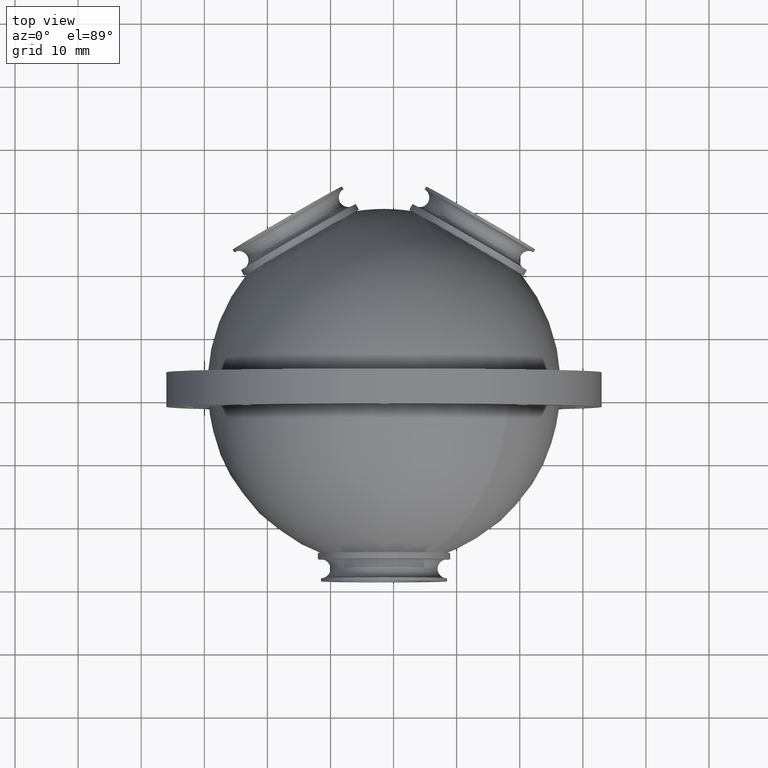
[diagram: clean part render]
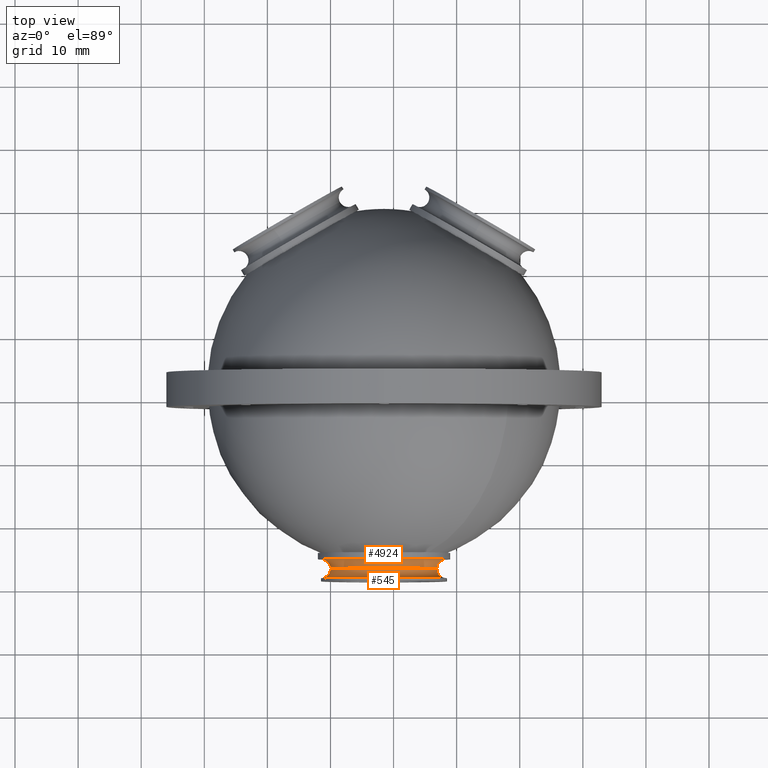
[diagram: same view with one multi-face feature highlighted, each face labeled with its STEP entity id]
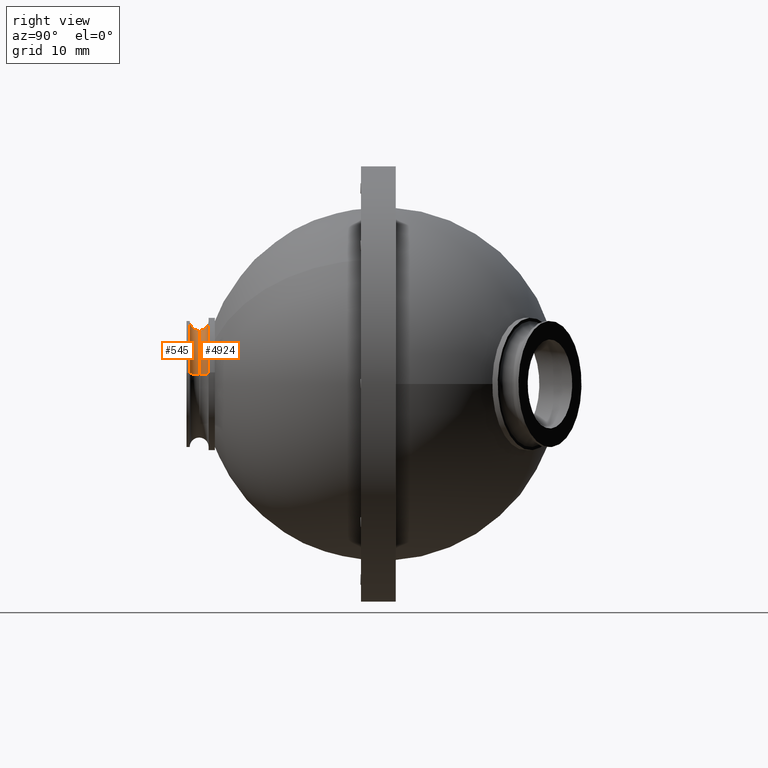
[diagram: same view with one multi-face feature highlighted, each face labeled with its STEP entity id]
A machine part, top view. The highlighted faces form ONE feature: a constant-radius fillet chain: 2 tangent blend faces with common blend radius 1.5 mm. The faces share edges in the B-rep.
A second angle (right view) of the same feature is appended — it is thin or edge-on in the first view.
Their STEP definitions:
[1] entity #4924 (Torus):
#350 = EDGE_CURVE ( 'NONE', #7479, #5092, #699, .T. ) ;
#699 = CIRCLE ( 'NONE', #8032, 1.500000000000002665 ) ;
#725 = EDGE_CURVE ( 'NONE', #1489, #4735, #3458, .T. ) ;
#833 = AXIS2_PLACEMENT_3D ( 'NONE', #3670, #3636, #4892 ) ;
#965 = AXIS2_PLACEMENT_3D ( 'NONE', #5138, #5764, #5726 ) ;
#1250 = AXIS2_PLACEMENT_3D ( 'NONE', #7990, #1936, #6153 ) ;
#1489 = VERTEX_POINT ( 'NONE', #5492 ) ;
#1551 = EDGE_CURVE ( 'NONE', #7479, #1489, #3738, .T. ) ;
#1936 = DIRECTION ( 'NONE',  ( -6.492176973796427489E-17, 1.000000000000000000, 6.925509685190237264E-17 ) ) ;
#2013 = DIRECTION ( 'NONE',  ( -6.492176973796427489E-17, 1.000000000000000000, 6.925509685190237264E-17 ) ) ;
#2567 = EDGE_LOOP ( 'NONE', ( #3069, #7190, #5221, #3324 ) ) ;
#2628 = CARTESIAN_POINT ( 'NONE',  ( 8.484018949608341131, -46.96425954842823813, 4.141897355845633643E-16 ) ) ;
#3069 = ORIENTED_EDGE ( 'NONE', *, *, #350, .T. ) ;
#3324 = ORIENTED_EDGE ( 'NONE', *, *, #1551, .F. ) ;
#3357 = DIRECTION ( 'NONE',  ( 0.000000000000000000, 0.000000000000000000, 1.000000000000000000 ) ) ;
#3458 = CIRCLE ( 'NONE', #833, 1.500000000000002665 ) ;
#3636 = DIRECTION ( 'NONE',  ( -0.1754252168549222113, -7.957005693644115275E-17, 0.9844927593900342222 ) ) ;
#3670 = CARTESIAN_POINT ( 'NONE',  ( 18.32894654350868180, -46.96425954842823813, 1.754252168549222501 ) ) ;
#3738 = CIRCLE ( 'NONE', #1250, 10.00000000000000000 ) ;
#4501 = TOROIDAL_SURFACE ( 'NONE', #965, 10.00000000000000000, 1.500000000000002442 ) ;
#4735 = VERTEX_POINT ( 'NONE', #8008 ) ;
#4892 = DIRECTION ( 'NONE',  ( 0.9844927593900341112, 0.000000000000000000, 0.1754252168549220448 ) ) ;
#4924 = ADVANCED_FACE ( 'NONE', ( #5103 ), #4501, .F. ) ;
#4967 = CARTESIAN_POINT ( 'NONE',  ( -1.360908644292000869, -45.46425954842823813, -1.754252168549220503 ) ) ;
#5092 = VERTEX_POINT ( 'NONE', #7315 ) ;
#5103 = FACE_OUTER_BOUND ( 'NONE', #2567, .T. ) ;
#5138 = CARTESIAN_POINT ( 'NONE',  ( 8.484018949608341131, -46.96425954842823813, 4.141897355845633643E-16 ) ) ;
#5221 = ORIENTED_EDGE ( 'NONE', *, *, #725, .F. ) ;
#5492 = CARTESIAN_POINT ( 'NONE',  ( 18.32894654350868180, -45.46425954842823813, 1.754252168549222723 ) ) ;
#5726 = DIRECTION ( 'NONE',  ( -0.9844927593900341112, -5.176592185025925934E-17, -0.1754252168549220725 ) ) ;
#5764 = DIRECTION ( 'NONE',  ( -6.492176973796427489E-17, 1.000000000000000000, 6.925509685190237264E-17 ) ) ;
#6109 = CARTESIAN_POINT ( 'NONE',  ( -1.360908644292000869, -46.96425954842823813, -1.754252168549220503 ) ) ;
#6153 = DIRECTION ( 'NONE',  ( 0.9844927593900341112, 0.000000000000000000, 0.1754252168549221003 ) ) ;
#6618 = CIRCLE ( 'NONE', #7008, 8.499999999999996447 ) ;
#6650 = DIRECTION ( 'NONE',  ( 0.1754252168549221003, 7.957005693644114043E-17, -0.9844927593900342222 ) ) ;
#6689 = DIRECTION ( 'NONE',  ( -0.9844927593900341112, 0.000000000000000000, -0.1754252168549222113 ) ) ;
#6792 = EDGE_CURVE ( 'NONE', #5092, #4735, #6618, .T. ) ;
#7008 = AXIS2_PLACEMENT_3D ( 'NONE', #2628, #2013, #3357 ) ;
#7190 = ORIENTED_EDGE ( 'NONE', *, *, #6792, .T. ) ;
#7315 = CARTESIAN_POINT ( 'NONE',  ( 0.1158304947930536843, -46.96425954842823813, -1.491114343266836784 ) ) ;
#7479 = VERTEX_POINT ( 'NONE', #4967 ) ;
#7990 = CARTESIAN_POINT ( 'NONE',  ( 8.484018949608341131, -45.46425954842823103, 5.180723808624170774E-16 ) ) ;
#8008 = CARTESIAN_POINT ( 'NONE',  ( 16.85220740442362697, -46.96425954842823813, 1.491114343266839004 ) ) ;
#8032 = AXIS2_PLACEMENT_3D ( 'NONE', #6109, #6650, #6689 ) ;
[2] entity #545 (Torus):
#545 = ADVANCED_FACE ( 'NONE', ( #7458 ), #4509, .F. ) ;
#599 = CARTESIAN_POINT ( 'NONE',  ( 8.484018949608341131, -46.96425954842823813, 4.141897355845633643E-16 ) ) ;
#606 = AXIS2_PLACEMENT_3D ( 'NONE', #3255, #7877, #5294 ) ;
#607 = CARTESIAN_POINT ( 'NONE',  ( 18.32894654350868180, -46.96425954842823813, 1.754252168549222501 ) ) ;
#620 = ORIENTED_EDGE ( 'NONE', *, *, #2700, .F. ) ;
#1245 = DIRECTION ( 'NONE',  ( 0.1754252168549221003, 7.957005693644114043E-17, -0.9844927593900342222 ) ) ;
#1353 = CIRCLE ( 'NONE', #1618, 1.500000000000002665 ) ;
#1618 = AXIS2_PLACEMENT_3D ( 'NONE', #1741, #1245, #2448 ) ;
#1741 = CARTESIAN_POINT ( 'NONE',  ( -1.360908644292000869, -46.96425954842823813, -1.754252168549220503 ) ) ;
#2013 = DIRECTION ( 'NONE',  ( -6.492176973796427489E-17, 1.000000000000000000, 6.925509685190237264E-17 ) ) ;
#2448 = DIRECTION ( 'NONE',  ( -0.9844927593900341112, 0.000000000000000000, -0.1754252168549222113 ) ) ;
#2628 = CARTESIAN_POINT ( 'NONE',  ( 8.484018949608341131, -46.96425954842823813, 4.141897355845633643E-16 ) ) ;
#2700 = EDGE_CURVE ( 'NONE', #4735, #3660, #3077, .T. ) ;
#3077 = CIRCLE ( 'NONE', #6620, 1.500000000000002665 ) ;
#3255 = CARTESIAN_POINT ( 'NONE',  ( 8.484018949608341131, -48.46425954842824524, 3.103070903067096513E-16 ) ) ;
#3357 = DIRECTION ( 'NONE',  ( 0.000000000000000000, 0.000000000000000000, 1.000000000000000000 ) ) ;
#3660 = VERTEX_POINT ( 'NONE', #4520 ) ;
#4076 = ORIENTED_EDGE ( 'NONE', *, *, #6792, .F. ) ;
#4372 = DIRECTION ( 'NONE',  ( -6.492176973796427489E-17, 1.000000000000000000, 6.925509685190237264E-17 ) ) ;
#4509 = TOROIDAL_SURFACE ( 'NONE', #4893, 10.00000000000000000, 1.500000000000002442 ) ;
#4520 = CARTESIAN_POINT ( 'NONE',  ( 18.32894654350868180, -48.46425954842824524, 1.754252168549222501 ) ) ;
#4676 = EDGE_CURVE ( 'NONE', #5092, #5014, #1353, .T. ) ;
#4679 = CARTESIAN_POINT ( 'NONE',  ( -1.360908644292000869, -48.46425954842824524, -1.754252168549220725 ) ) ;
#4735 = VERTEX_POINT ( 'NONE', #8008 ) ;
#4893 = AXIS2_PLACEMENT_3D ( 'NONE', #599, #4372, #6884 ) ;
#4947 = ORIENTED_EDGE ( 'NONE', *, *, #4676, .T. ) ;
#5014 = VERTEX_POINT ( 'NONE', #4679 ) ;
#5092 = VERTEX_POINT ( 'NONE', #7315 ) ;
#5209 = EDGE_LOOP ( 'NONE', ( #4076, #4947, #5545, #620 ) ) ;
#5294 = DIRECTION ( 'NONE',  ( -0.9844927593900341112, 0.000000000000000000, -0.1754252168549220725 ) ) ;
#5545 = ORIENTED_EDGE ( 'NONE', *, *, #6613, .F. ) ;
#6313 = DIRECTION ( 'NONE',  ( -0.1754252168549222113, -7.957005693644115275E-17, 0.9844927593900342222 ) ) ;
#6613 = EDGE_CURVE ( 'NONE', #3660, #5014, #6881, .T. ) ;
#6618 = CIRCLE ( 'NONE', #7008, 8.499999999999996447 ) ;
#6620 = AXIS2_PLACEMENT_3D ( 'NONE', #607, #6313, #6969 ) ;
#6792 = EDGE_CURVE ( 'NONE', #5092, #4735, #6618, .T. ) ;
#6881 = CIRCLE ( 'NONE', #606, 10.00000000000000178 ) ;
#6884 = DIRECTION ( 'NONE',  ( -0.9844927593900341112, -5.176592185025925934E-17, -0.1754252168549220725 ) ) ;
#6969 = DIRECTION ( 'NONE',  ( 0.9844927593900341112, 0.000000000000000000, 0.1754252168549220448 ) ) ;
#7008 = AXIS2_PLACEMENT_3D ( 'NONE', #2628, #2013, #3357 ) ;
#7315 = CARTESIAN_POINT ( 'NONE',  ( 0.1158304947930536843, -46.96425954842823813, -1.491114343266836784 ) ) ;
#7458 = FACE_OUTER_BOUND ( 'NONE', #5209, .T. ) ;
#7877 = DIRECTION ( 'NONE',  ( 6.492176973796427489E-17, -1.000000000000000000, -6.925509685190237264E-17 ) ) ;
#8008 = CARTESIAN_POINT ( 'NONE',  ( 16.85220740442362697, -46.96425954842823813, 1.491114343266839004 ) ) ;